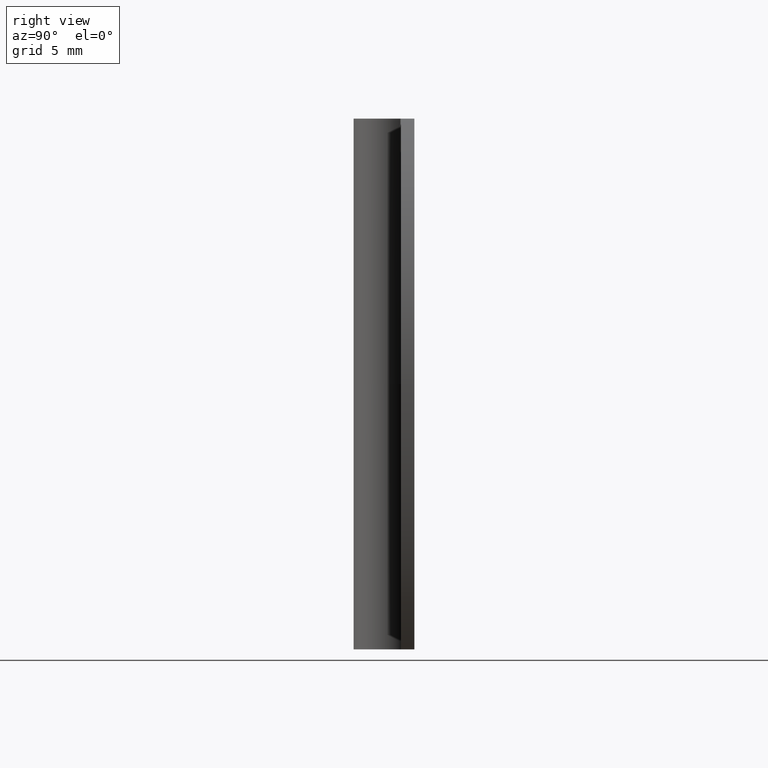
[diagram: clean part render]
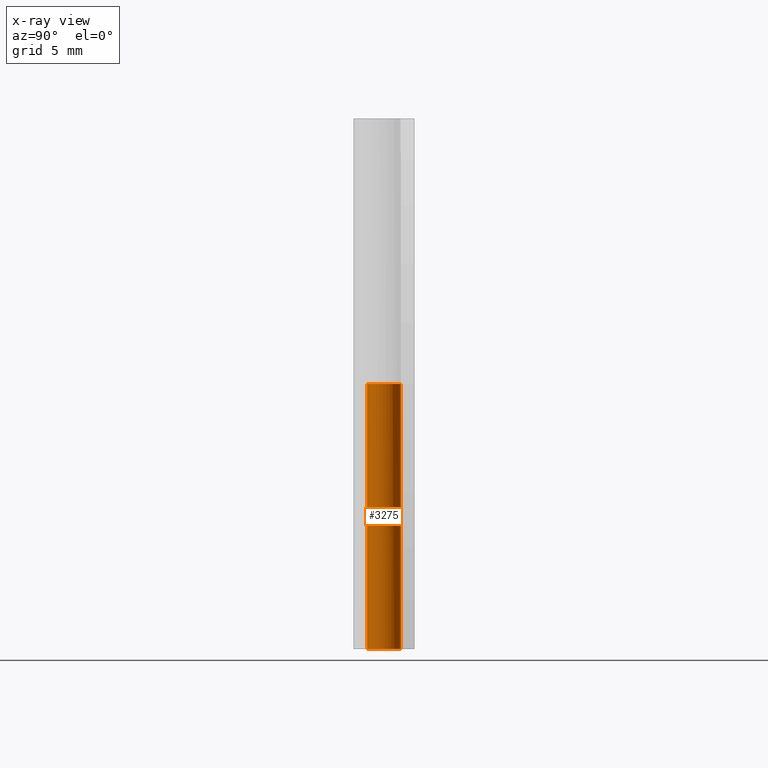
[diagram: x-ray — body ghosted, one internal face saturated and labeled with its STEP entity id]
A machine part, right view, then the same camera in x-ray: the body is ghosted and one INTERNAL B-rep face — a face not visible from any outside direction — is saturated and labeled: STEP entity #3275.
In plain terms, the highlighted face is a freeform B-spline surface patch.
Its self-contained STEP definition (entity closure, byte-faithful):
#3003=CARTESIAN_POINT('',(-1.057381461704126,0.666666666666667,19.650002000000001));
#3004=VERTEX_POINT('',#3003);
#3005=CARTESIAN_POINT('',(0.0,1.250000000000000,19.650002000000001));
#3006=VERTEX_POINT('',#3005);
#3007=CARTESIAN_POINT('',(-1.057381461704126,0.666666666666667,19.650002000000001));
#3008=CARTESIAN_POINT('',(-1.574107444521839,-0.152898045851773,19.650001999999997));
#3009=CARTESIAN_POINT('',(-0.909315076369610,-0.857698135643847,19.650002000000001));
#3010=CARTESIAN_POINT('',(-0.244522708217381,-1.562498225435921,19.650001999999997));
#3011=CARTESIAN_POINT('',(0.603807364424560,-1.094493794713642,19.650002000000001));
#3012=CARTESIAN_POINT('',(1.452137437066499,-0.626489363991362,19.650001999999997));
#3013=CARTESIAN_POINT('',(1.210499327424855,0.311755318004319,19.650002000000001));
#3014=CARTESIAN_POINT('',(0.968861217783210,1.250000000000000,19.650001999999997));
#3015=CARTESIAN_POINT('',(0.0,1.250000000000000,19.650002000000001));
#3023=(BOUNDED_CURVE()B_SPLINE_CURVE(2,(#3007,#3008,#3009,#3010,#3011,#3012,#3013,#3014,#3015),.UNSPECIFIED.,.F.,.U.)B_SPLINE_CURVE_WITH_KNOTS((3,2,2,2,3),(0.0,0.250000000000000,0.500000000000000,0.750000000000000,1.0),.UNSPECIFIED.)CURVE()GEOMETRIC_REPRESENTATION_ITEM()RATIONAL_B_SPLINE_CURVE((1.0,0.790381001290977,1.0,0.790381001290977,1.0,0.790381001290977,1.0,0.790381001290977,1.0))REPRESENTATION_ITEM(''));
#3024=EDGE_CURVE('',#3004,#3006,#3023,.T.);
#3102=CARTESIAN_POINT('',(-1.057381461704126,0.666666666666666,0.0));
#3103=VERTEX_POINT('',#3102);
#3109=CARTESIAN_POINT('',(0.0,1.250000000000000,0.0));
#3110=VERTEX_POINT('',#3109);
#3111=CARTESIAN_POINT('',(0.0,1.250000000000000,0.0));
#3112=CARTESIAN_POINT('',(0.968861217783209,1.250000000000000,0.0));
#3113=CARTESIAN_POINT('',(1.210499327424855,0.311755318004319,0.0));
#3114=CARTESIAN_POINT('',(1.452137437066501,-0.626489363991361,0.0));
#3115=CARTESIAN_POINT('',(0.603807364424561,-1.094493794713641,0.0));
#3116=CARTESIAN_POINT('',(-0.244522708217379,-1.562498225435921,0.0));
#3117=CARTESIAN_POINT('',(-0.909315076369609,-0.857698135643848,0.0));
#3118=CARTESIAN_POINT('',(-1.574107444521839,-0.152898045851775,0.0));
#3119=CARTESIAN_POINT('',(-1.057381461704128,0.666666666666666,0.0));
#3127=(BOUNDED_CURVE()B_SPLINE_CURVE(2,(#3111,#3112,#3113,#3114,#3115,#3116,#3117,#3118,#3119),.UNSPECIFIED.,.F.,.U.)B_SPLINE_CURVE_WITH_KNOTS((3,2,2,2,3),(0.0,0.250000000000000,0.500000000000000,0.750000000000000,1.0),.UNSPECIFIED.)CURVE()GEOMETRIC_REPRESENTATION_ITEM()RATIONAL_B_SPLINE_CURVE((1.0,0.790381001290977,1.0,0.790381001290977,1.0,0.790381001290977,1.0,0.790381001290977,1.0))REPRESENTATION_ITEM(''));
#3128=EDGE_CURVE('',#3110,#3103,#3127,.T.);
#3234=CARTESIAN_POINT('',(-1.057381461704126,0.666666666666667,19.650002000000001));
#3235=CARTESIAN_POINT('',(-1.057381461704126,0.666666666666666,0.0));
#3236=QUASI_UNIFORM_CURVE('',1,(#3234,#3235),.UNSPECIFIED.,.F.,.U.);
#3237=EDGE_CURVE('',#3004,#3103,#3236,.T.);
#3243=CARTESIAN_POINT('',(-1.030157735777519,0.708007796156041,20.141252050000009));
#3244=CARTESIAN_POINT('',(-1.030157735777519,0.708007796156041,-0.503531301250000));
#3245=CARTESIAN_POINT('',(-1.920245524523552,-0.587077972780529,20.141252050000002));
#3246=CARTESIAN_POINT('',(-1.920245524523552,-0.587077972780529,-0.503531301250000));
#3247=CARTESIAN_POINT('',(-0.458126533405371,-1.163021959977531,20.141252050000009));
#3248=CARTESIAN_POINT('',(-0.458126533405371,-1.163021959977531,-0.503531301250000));
#3249=CARTESIAN_POINT('',(1.003992457712810,-1.738965947174533,20.141252050000002));
#3250=CARTESIAN_POINT('',(1.003992457712810,-1.738965947174533,-0.503531301250000));
#3251=CARTESIAN_POINT('',(1.236269829202396,-0.184761763912012,20.141252050000009));
#3252=CARTESIAN_POINT('',(1.236269829202396,-0.184761763912012,-0.503531301250000));
#3253=CARTESIAN_POINT('',(1.468547200691982,1.369442419350508,20.141252050000002));
#3254=CARTESIAN_POINT('',(1.468547200691982,1.369442419350508,-0.503531301250000));
#3255=CARTESIAN_POINT('',(-0.098073869659808,1.246146667166410,20.141252050000009));
#3256=CARTESIAN_POINT('',(-0.098073869659808,1.246146667166410,-0.503531301250000));
#3264=(BOUNDED_SURFACE()B_SPLINE_SURFACE(1,2,((#3243,#3245,#3247,#3249,#3251,#3253,#3255),(#3244,#3246,#3248,#3250,#3252,#3254,#3256)),.UNSPECIFIED.,.F.,.F.,.U.)B_SPLINE_SURFACE_WITH_KNOTS((2,2),(3,2,2,3),(0.0,20.644783351250009),(0.0,2.411713704087853,4.823427408175706,7.235141112263559),.UNSPECIFIED.)GEOMETRIC_REPRESENTATION_ITEM()RATIONAL_B_SPLINE_SURFACE(((1.0,0.622514636637620,1.0,0.622514636637620,1.0,0.622514636637620,1.0),(1.0,0.622514636637620,1.0,0.622514636637620,1.0,0.622514636637620,1.0)))REPRESENTATION_ITEM('')SURFACE());
#3265=ORIENTED_EDGE('',*,*,#3237,.F.);
#3266=ORIENTED_EDGE('',*,*,#3024,.T.);
#3267=CARTESIAN_POINT('',(0.0,1.250000000000000,19.650002000000001));
#3268=CARTESIAN_POINT('',(0.0,1.250000000000000,0.0));
#3269=QUASI_UNIFORM_CURVE('',1,(#3267,#3268),.UNSPECIFIED.,.F.,.U.);
#3270=EDGE_CURVE('',#3006,#3110,#3269,.T.);
#3271=ORIENTED_EDGE('',*,*,#3270,.T.);
#3272=ORIENTED_EDGE('',*,*,#3128,.T.);
#3273=EDGE_LOOP('',(#3265,#3266,#3271,#3272));
#3274=FACE_OUTER_BOUND('',#3273,.T.);
#3275=ADVANCED_FACE('',(#3274),#3264,.F.);